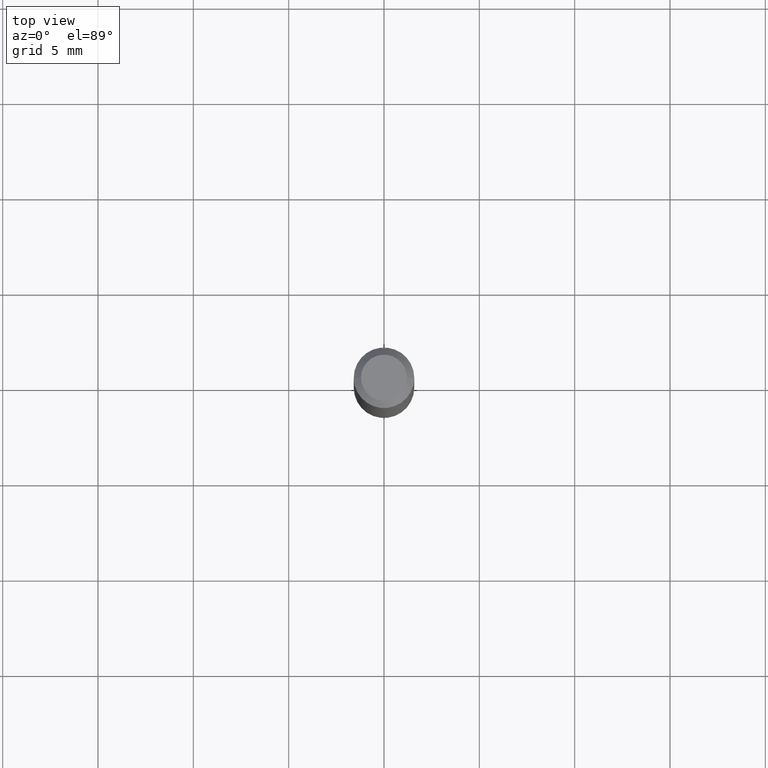
[diagram: clean part render]
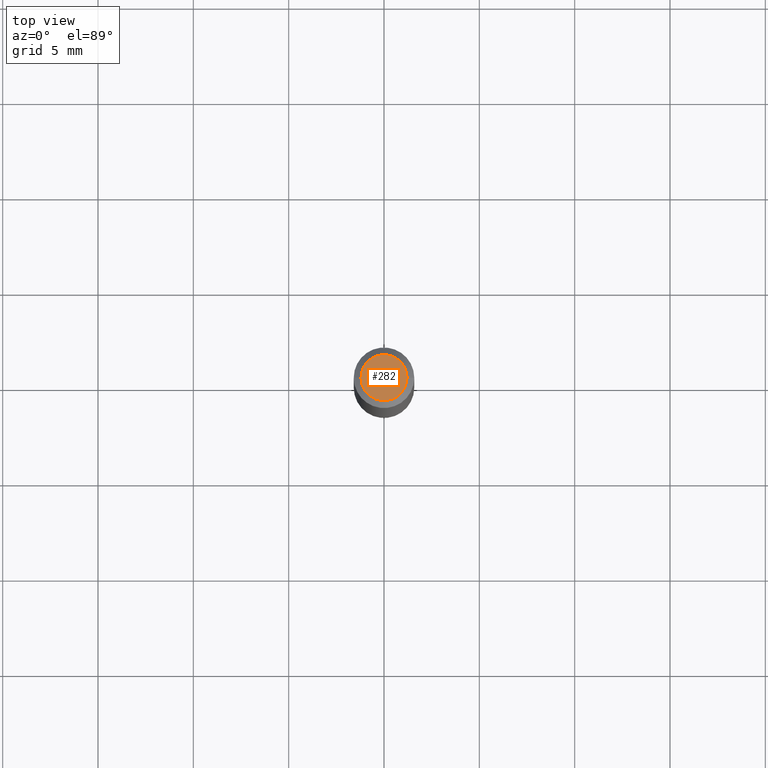
[diagram: same view with one face highlighted and labeled with its STEP entity id]
A machine part, top view. The second image highlights one B-rep face of the part: STEP entity #282.
In plain terms, the highlighted planar face has unit normal (0, -0, -1).
Its self-contained STEP definition (entity closure, byte-faithful):
#5 = CARTESIAN_POINT ( 'NONE',  ( -6.680649051745406845E-45, 9.538196290434862081E-31, 2.731847993664263218E-16 ) ) ;
#13 = AXIS2_PLACEMENT_3D ( 'NONE', #287, #46, #321 ) ;
#14 = ORIENTED_EDGE ( 'NONE', *, *, #517, .T. ) ;
#15 = CARTESIAN_POINT ( 'NONE',  ( -0.04750000000000000749, 3.578768372314221353E-16, 2.731847993664239060E-16 ) ) ;
#24 = CIRCLE ( 'NONE', #13, 0.04750000000000000749 ) ;
#33 = AXIS2_PLACEMENT_3D ( 'NONE', #5, #106, #368 ) ;
#46 = DIRECTION ( 'NONE',  ( -2.445468806185136597E-29, 3.491481338843145583E-15, 1.000000000000000000 ) ) ;
#106 = DIRECTION ( 'NONE',  ( -2.445468806185136597E-29, 3.491481338843145583E-15, 1.000000000000000000 ) ) ;
#109 = ORIENTED_EDGE ( 'NONE', *, *, #269, .T. ) ;
#141 = AXIS2_PLACEMENT_3D ( 'NONE', #451, #337, #326 ) ;
#150 = VERTEX_POINT ( 'NONE', #15 ) ;
#257 = VERTEX_POINT ( 'NONE', #272 ) ;
#261 = PLANE ( 'NONE',  #141 ) ;
#269 = EDGE_CURVE ( 'NONE', #257, #150, #347, .T. ) ;
#272 = CARTESIAN_POINT ( 'NONE',  ( 0.04750000000000000749, -4.035134999187568762E-16, 2.731847993664288856E-16 ) ) ;
#282 = ADVANCED_FACE ( 'NONE', ( #294 ), #261, .F. ) ;
#287 = CARTESIAN_POINT ( 'NONE',  ( -6.680649051745406845E-45, 9.538196290434862081E-31, 2.731847993664263218E-16 ) ) ;
#294 = FACE_OUTER_BOUND ( 'NONE', #376, .T. ) ;
#321 = DIRECTION ( 'NONE',  ( 1.000000000000000000, -6.982962677686266711E-15, 4.852736867747365086E-29 ) ) ;
#326 = DIRECTION ( 'NONE',  ( -1.000000000000000000, 6.982962677686265922E-15, -4.876176775795935793E-29 ) ) ;
#337 = DIRECTION ( 'NONE',  ( 2.438088387897960049E-29, -3.491481338843145188E-15, -1.000000000000000000 ) ) ;
#347 = CIRCLE ( 'NONE', #33, 0.04750000000000000749 ) ;
#368 = DIRECTION ( 'NONE',  ( 1.000000000000000000, -6.982962677686266711E-15, 4.852736867747365086E-29 ) ) ;
#376 = EDGE_LOOP ( 'NONE', ( #14, #109 ) ) ;
#451 = CARTESIAN_POINT ( 'NONE',  ( 3.316907271900976589E-16, 0.04750000000000000749, -2.925296391183627249E-17 ) ) ;
#517 = EDGE_CURVE ( 'NONE', #150, #257, #24, .T. ) ;